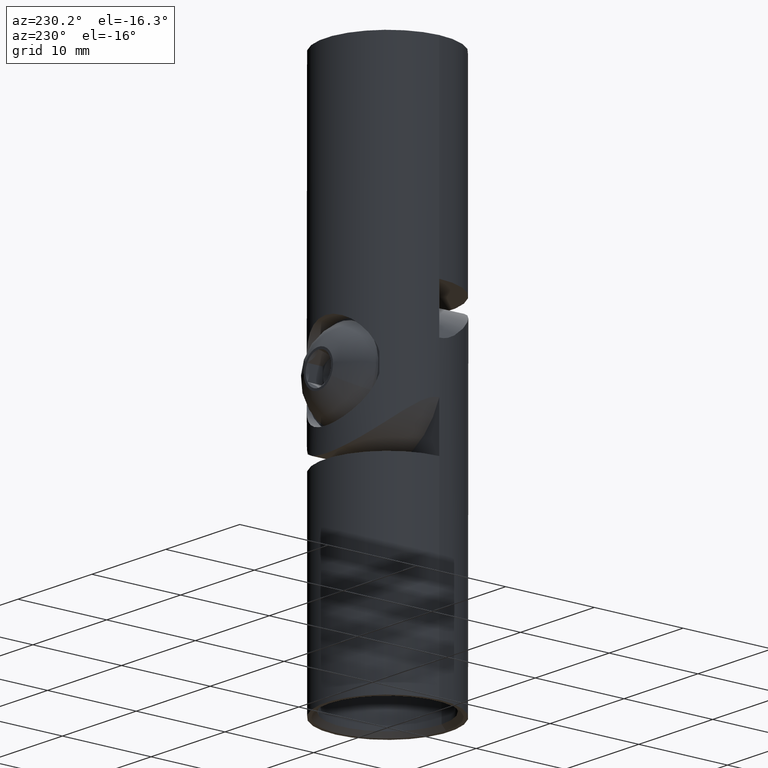
[diagram: clean part render]
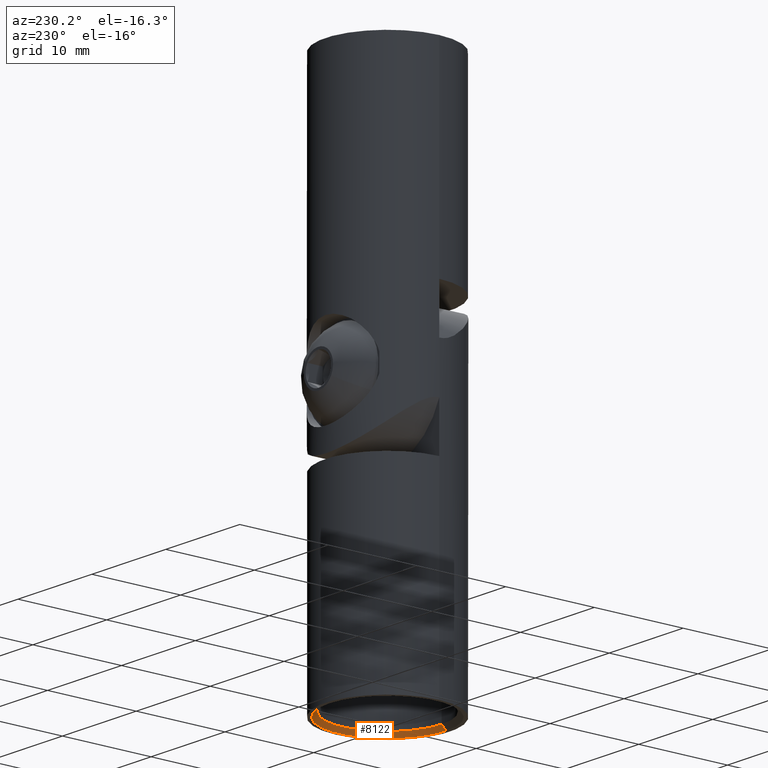
[diagram: same view with one face highlighted and labeled with its STEP entity id]
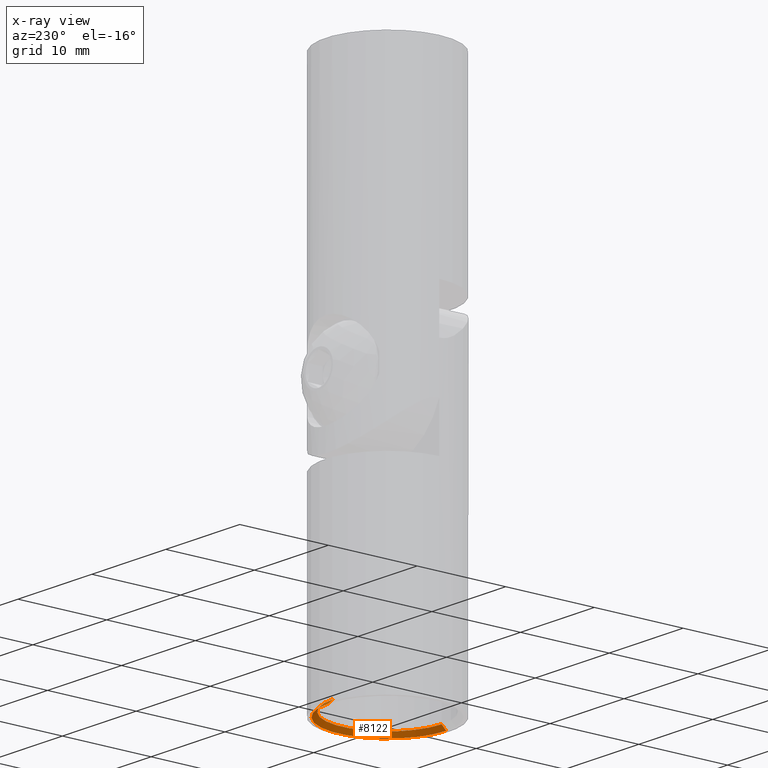
[diagram: x-ray of the same camera — body ghosted, the highlighted face saturated]
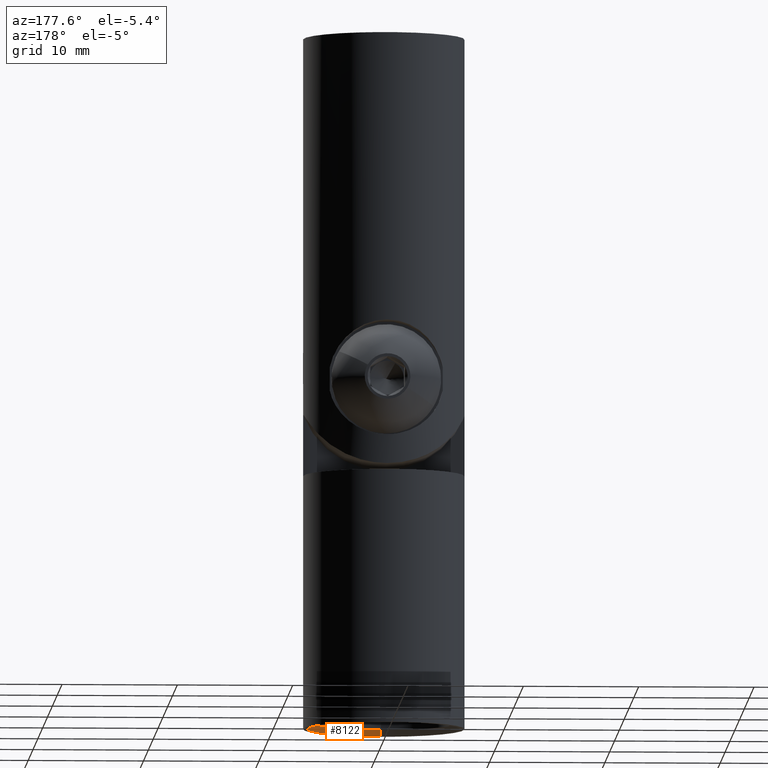
[diagram: same view with one face highlighted and labeled with its STEP entity id]
A machine part, auxiliary view. The second image highlights one B-rep face of the part: STEP entity #8122.
The next image is the same camera in x-ray: the body ghosted, the highlighted face saturated — about 0% of this face is hidden behind the body in this view.
A second angle (auxiliary view) of the same face is appended — the face is thin or edge-on in the first view.
In plain terms, the highlighted conical surface has half-angle 45 deg.
Its self-contained STEP definition (entity closure, byte-faithful):
#603 = EDGE_CURVE ( 'NONE', #2660, #6129, #2111, .T. ) ;
#900 = ORIENTED_EDGE ( 'NONE', *, *, #603, .F. ) ;
#1153 = CARTESIAN_POINT ( 'NONE',  ( 0.000000000000000000, 1.293932908674942148E-35, 22.00000000000001066 ) ) ;
#1196 = CONICAL_SURFACE ( 'NONE', #2950, 6.599999999999997868, 0.7853981633974447263 ) ;
#1374 = ORIENTED_EDGE ( 'NONE', *, *, #3339, .F. ) ;
#2076 = LINE ( 'NONE', #7061, #13549 ) ;
#2111 = CIRCLE ( 'NONE', #12699, 6.099999999999997868 ) ;
#2175 = DIRECTION ( 'NONE',  ( -0.000000000000000000, -0.000000000000000000, -1.000000000000000000 ) ) ;
#2184 = EDGE_LOOP ( 'NONE', ( #1374, #900, #10659, #7853 ) ) ;
#2660 = VERTEX_POINT ( 'NONE', #7797 ) ;
#2666 = DIRECTION ( 'NONE',  ( 0.000000000000000000, 1.009378427538586340E-18, 1.000000000000000000 ) ) ;
#2950 = AXIS2_PLACEMENT_3D ( 'NONE', #5905, #4948, #5950 ) ;
#3339 = EDGE_CURVE ( 'NONE', #6129, #3700, #2076, .T. ) ;
#3379 = EDGE_CURVE ( 'NONE', #3700, #9440, #13406, .T. ) ;
#3700 = VERTEX_POINT ( 'NONE', #13984 ) ;
#4020 = CARTESIAN_POINT ( 'NONE',  ( 0.000000000000000000, 6.099999999999997868, 21.50000000000000000 ) ) ;
#4948 = DIRECTION ( 'NONE',  ( 0.000000000000000000, 1.009378427538586340E-18, 1.000000000000000000 ) ) ;
#5843 = DIRECTION ( 'NONE',  ( 0.000000000000000000, -1.000000000000000000, 0.000000000000000000 ) ) ;
#5885 = CARTESIAN_POINT ( 'NONE',  ( 0.000000000000000000, -5.046892137692973110E-19, 21.50000000000000000 ) ) ;
#5905 = CARTESIAN_POINT ( 'NONE',  ( 0.000000000000000000, 0.000000000000000000, 22.00000000000001066 ) ) ;
#5950 = DIRECTION ( 'NONE',  ( 0.000000000000000000, -1.000000000000000000, 0.000000000000000000 ) ) ;
#5995 = DIRECTION ( 'NONE',  ( 0.000000000000000000, -0.7071067811865449082, 0.7071067811865501263 ) ) ;
#6129 = VERTEX_POINT ( 'NONE', #4020 ) ;
#6863 = EDGE_CURVE ( 'NONE', #2660, #9440, #12647, .T. ) ;
#7061 = CARTESIAN_POINT ( 'NONE',  ( 8.082668874372532006E-16, 6.599999999999997868, 22.00000000000001066 ) ) ;
#7675 = VECTOR ( 'NONE', #5995, 1000.000000000000227 ) ;
#7797 = CARTESIAN_POINT ( 'NONE',  ( 7.470345474798855279E-16, -6.099999999999997868, 21.50000000000000000 ) ) ;
#7853 = ORIENTED_EDGE ( 'NONE', *, *, #3379, .F. ) ;
#8016 = FACE_OUTER_BOUND ( 'NONE', #2184, .T. ) ;
#8122 = ADVANCED_FACE ( 'NONE', ( #8016 ), #1196, .F. ) ;
#8840 = DIRECTION ( 'NONE',  ( 1.000000000000000000, 0.000000000000000000, 0.000000000000000000 ) ) ;
#9440 = VERTEX_POINT ( 'NONE', #10353 ) ;
#10353 = CARTESIAN_POINT ( 'NONE',  ( 0.000000000000000000, -6.599999999999997868, 22.00000000000001066 ) ) ;
#10659 = ORIENTED_EDGE ( 'NONE', *, *, #6863, .T. ) ;
#11604 = CARTESIAN_POINT ( 'NONE',  ( 0.000000000000000000, -6.599999999999997868, 22.00000000000001066 ) ) ;
#12607 = DIRECTION ( 'NONE',  ( 8.659560562354903276E-17, 0.7071067811865449082, 0.7071067811865501263 ) ) ;
#12647 = LINE ( 'NONE', #11604, #7675 ) ;
#12699 = AXIS2_PLACEMENT_3D ( 'NONE', #5885, #2666, #5843 ) ;
#13406 = CIRCLE ( 'NONE', #13651, 6.600000000000000533 ) ;
#13549 = VECTOR ( 'NONE', #12607, 1000.000000000000227 ) ;
#13651 = AXIS2_PLACEMENT_3D ( 'NONE', #1153, #2175, #8840 ) ;
#13984 = CARTESIAN_POINT ( 'NONE',  ( 8.082668874372532006E-16, 6.599999999999997868, 22.00000000000001066 ) ) ;